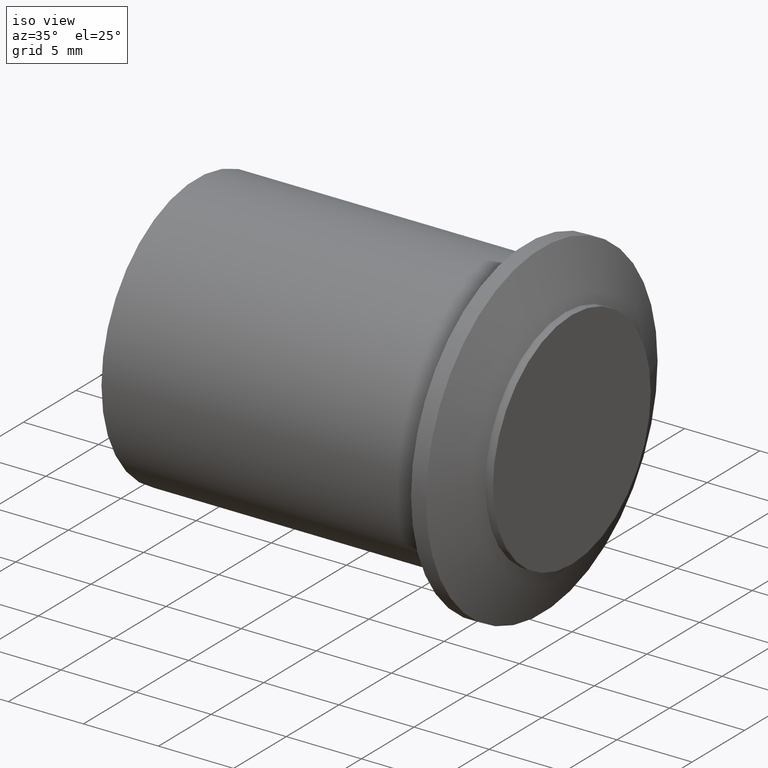
[diagram: clean part render]
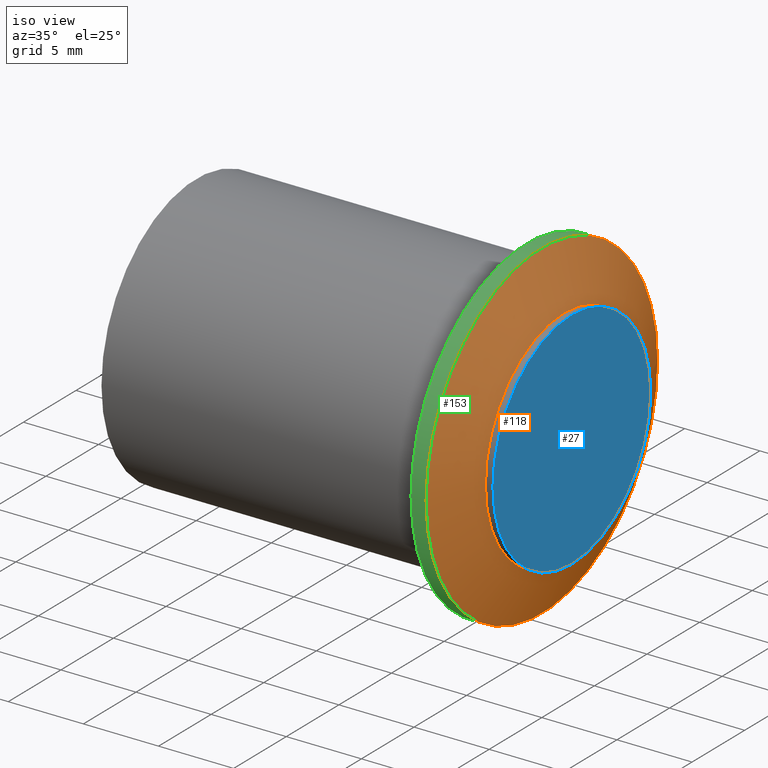
[diagram: same view with three faces highlighted in distinct colors, each labeled with its STEP entity id]
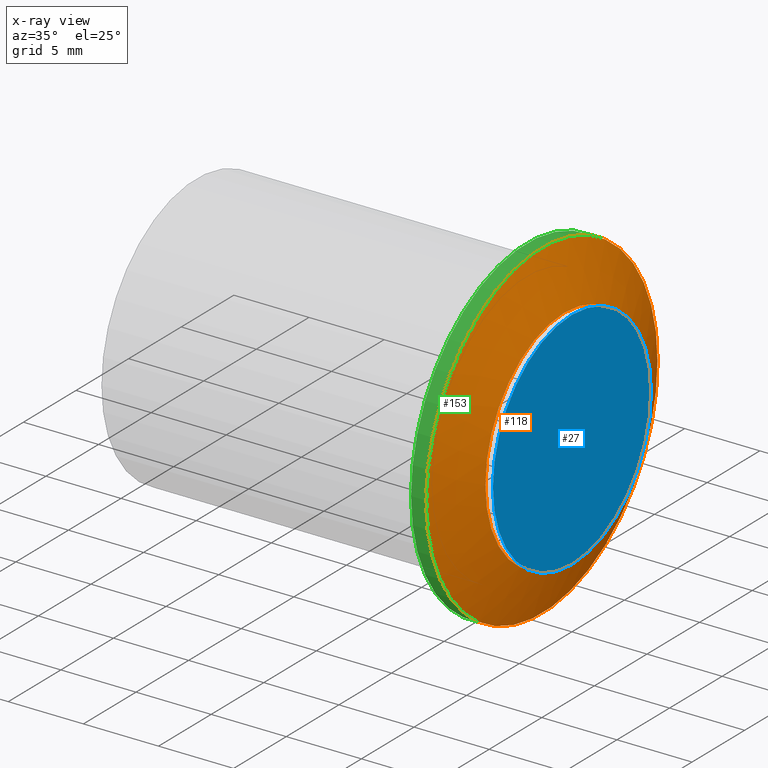
[diagram: x-ray of the same camera — body ghosted, the three highlighted faces saturated]
A machine part, iso view with three faces highlighted in distinct colors.
The next image is the same camera in x-ray (body ghosted, the three faces saturated) — at least one of them is partly hidden behind the body in this view.
Their STEP definitions:

[orange] entity #118 — the highlighted face is a freeform B-spline surface patch.
#33=CARTESIAN_POINT('',(-0.500000000000000,7.499999999999886,0.0));
#34=VERTEX_POINT('',#33);
#41=CARTESIAN_POINT('',(-0.500000000000000,-7.499999999999886,0.0));
#42=VERTEX_POINT('',#41);
#43=CARTESIAN_POINT('',(-0.500000000000000,0.0,0.0));
#44=DIRECTION('',(1.0,0.0,0.0));
#45=DIRECTION('',(0.0,1.0,0.0));
#46=AXIS2_PLACEMENT_3D('',#43,#44,#45);
#47=CIRCLE('',#46,7.499999999999886);
#48=EDGE_CURVE('',#34,#42,#47,.T.);
#50=CARTESIAN_POINT('',(-0.500000000000000,0.0,0.0));
#51=DIRECTION('',(1.0,0.0,0.0));
#52=DIRECTION('',(0.0,1.0,0.0));
#53=AXIS2_PLACEMENT_3D('',#50,#51,#52);
#54=CIRCLE('',#53,7.499999999999886);
#55=EDGE_CURVE('',#42,#34,#54,.T.);
#63=CARTESIAN_POINT('',(-0.500000000000000,7.499999999999886,0.0));
#64=CARTESIAN_POINT('',(-0.500000000000000,7.499999999999886,7.499999999999886));
#65=CARTESIAN_POINT('',(-0.500000000000000,0.0,7.499999999999886));
#66=CARTESIAN_POINT('',(-0.500000000000000,-7.499999999999886,7.499999999999886));
#67=CARTESIAN_POINT('',(-0.500000000000000,-7.499999999999886,0.0));
#68=CARTESIAN_POINT('',(-0.500000000000000,-7.499999999999886,-7.499999999999886));
#69=CARTESIAN_POINT('',(-0.500000000000000,0.0,-7.499999999999886));
#70=CARTESIAN_POINT('',(-0.500000000000000,7.499999999999886,-7.499999999999886));
#71=CARTESIAN_POINT('',(-0.500000000000000,7.499999999999886,0.0));
#72=CARTESIAN_POINT('',(-2.0,10.999999999999886,0.0));
#73=CARTESIAN_POINT('',(-2.0,10.999999999999886,10.999999999999886));
#74=CARTESIAN_POINT('',(-2.0,0.0,10.999999999999886));
#75=CARTESIAN_POINT('',(-2.0,-10.999999999999886,10.999999999999886));
#76=CARTESIAN_POINT('',(-2.0,-10.999999999999886,0.0));
#77=CARTESIAN_POINT('',(-2.0,-10.999999999999886,-10.999999999999886));
#78=CARTESIAN_POINT('',(-2.0,0.0,-10.999999999999886));
#79=CARTESIAN_POINT('',(-2.0,10.999999999999886,-10.999999999999886));
#80=CARTESIAN_POINT('',(-2.0,10.999999999999886,0.0));
#88=(BOUNDED_SURFACE()B_SPLINE_SURFACE(2,1,((#63,#72),(#64,#73),(#65,#74),(#66,#75),(#67,#76),(#68,#77),(#69,#78),(#70,#79),(#71,#80)),.UNSPECIFIED.,.T.,.F.,.U.)B_SPLINE_SURFACE_WITH_KNOTS((3,2,2,2,3),(2,2),(0.0,0.250000000000000,0.500000000000000,0.750000000000000,1.0),(-3.807886552931954,0.0),.UNSPECIFIED.)GEOMETRIC_REPRESENTATION_ITEM()RATIONAL_B_SPLINE_SURFACE(((1.0,1.0),(0.707106781186548,0.707106781186548),(1.0,1.0),(0.707106781186548,0.707106781186548),(1.0,1.0),(0.707106781186548,0.707106781186548),(1.0,1.0),(0.707106781186548,0.707106781186548),(1.0,1.0)))REPRESENTATION_ITEM('')SURFACE());
#89=CARTESIAN_POINT('',(-2.0,10.999999999999886,0.0));
#90=VERTEX_POINT('',#89);
#91=CARTESIAN_POINT('',(-0.500000000000000,7.499999999999886,0.0));
#92=DIRECTION('',(-0.393919298579168,0.919145030018058,0.0));
#93=VECTOR('',#92,3.807886552931954);
#94=LINE('',#91,#93);
#95=EDGE_CURVE('',#34,#90,#94,.T.);
#96=ORIENTED_EDGE('',*,*,#95,.T.);
#97=CARTESIAN_POINT('',(-2.0,-10.999999999999886,0.0));
#98=VERTEX_POINT('',#97);
#99=CARTESIAN_POINT('',(-2.0,0.0,0.0));
#100=DIRECTION('',(1.0,0.0,0.0));
#101=DIRECTION('',(0.0,1.0,0.0));
#102=AXIS2_PLACEMENT_3D('',#99,#100,#101);
#103=CIRCLE('',#102,10.999999999999886);
#104=EDGE_CURVE('',#90,#98,#103,.T.);
#105=ORIENTED_EDGE('',*,*,#104,.T.);
#106=CARTESIAN_POINT('',(-2.0,0.0,0.0));
#107=DIRECTION('',(1.0,0.0,0.0));
#108=DIRECTION('',(0.0,1.0,0.0));
#109=AXIS2_PLACEMENT_3D('',#106,#107,#108);
#110=CIRCLE('',#109,10.999999999999886);
#111=EDGE_CURVE('',#98,#90,#110,.T.);
#112=ORIENTED_EDGE('',*,*,#111,.T.);
#113=ORIENTED_EDGE('',*,*,#95,.F.);
#114=ORIENTED_EDGE('',*,*,#55,.F.);
#115=ORIENTED_EDGE('',*,*,#48,.F.);
#116=EDGE_LOOP('',(#96,#105,#112,#113,#114,#115));
#117=FACE_OUTER_BOUND('',#116,.T.);
#118=ADVANCED_FACE('',(#117),#88,.F.);

[blue] entity #27 — the highlighted planar face has unit normal (-1, 0, 0).
#2=CARTESIAN_POINT('',(0.0,-14.999999999999773,-14.999999999999773));
#3=DIRECTION('',(-1.0,0.0,0.0));
#4=DIRECTION('',(0.0,0.0,1.0));
#5=AXIS2_PLACEMENT_3D('',#2,#3,#4);
#6=PLANE('',#5);
#7=CARTESIAN_POINT('',(0.0,7.499999999999886,0.0));
#8=VERTEX_POINT('',#7);
#9=CARTESIAN_POINT('',(0.0,-7.499999999999886,0.0));
#10=VERTEX_POINT('',#9);
#11=CARTESIAN_POINT('',(0.0,0.0,0.0));
#12=DIRECTION('',(1.0,0.0,0.0));
#13=DIRECTION('',(0.0,1.0,0.0));
#14=AXIS2_PLACEMENT_3D('',#11,#12,#13);
#15=CIRCLE('',#14,7.499999999999886);
#16=EDGE_CURVE('',#8,#10,#15,.T.);
#17=ORIENTED_EDGE('',*,*,#16,.T.);
#18=CARTESIAN_POINT('',(0.0,0.0,0.0));
#19=DIRECTION('',(1.0,0.0,0.0));
#20=DIRECTION('',(0.0,1.0,0.0));
#21=AXIS2_PLACEMENT_3D('',#18,#19,#20);
#22=CIRCLE('',#21,7.499999999999886);
#23=EDGE_CURVE('',#10,#8,#22,.T.);
#24=ORIENTED_EDGE('',*,*,#23,.T.);
#25=EDGE_LOOP('',(#17,#24));
#26=FACE_OUTER_BOUND('',#25,.T.);
#27=ADVANCED_FACE('',(#26),#6,.F.);

[green] entity #153 — the highlighted cylindrical surface (bore or boss wall) has radius 11 mm, axis along (1, 0, 0).
#89=CARTESIAN_POINT('',(-2.0,10.999999999999886,0.0));
#90=VERTEX_POINT('',#89);
#97=CARTESIAN_POINT('',(-2.0,-10.999999999999886,0.0));
#98=VERTEX_POINT('',#97);
#99=CARTESIAN_POINT('',(-2.0,0.0,0.0));
#100=DIRECTION('',(1.0,0.0,0.0));
#101=DIRECTION('',(0.0,1.0,0.0));
#102=AXIS2_PLACEMENT_3D('',#99,#100,#101);
#103=CIRCLE('',#102,10.999999999999886);
#104=EDGE_CURVE('',#90,#98,#103,.T.);
#106=CARTESIAN_POINT('',(-2.0,0.0,0.0));
#107=DIRECTION('',(1.0,0.0,0.0));
#108=DIRECTION('',(0.0,1.0,0.0));
#109=AXIS2_PLACEMENT_3D('',#106,#107,#108);
#110=CIRCLE('',#109,10.999999999999886);
#111=EDGE_CURVE('',#98,#90,#110,.T.);
#119=CARTESIAN_POINT('',(-2.0,0.0,0.0));
#120=DIRECTION('',(1.0,0.0,0.0));
#121=DIRECTION('',(0.0,1.0,0.0));
#122=AXIS2_PLACEMENT_3D('',#119,#120,#121);
#123=CYLINDRICAL_SURFACE('',#122,10.999999999999886);
#124=CARTESIAN_POINT('',(-3.0,10.999999999999886,0.0));
#125=VERTEX_POINT('',#124);
#126=CARTESIAN_POINT('',(-2.0,10.999999999999886,0.0));
#127=DIRECTION('',(-1.0,0.0,0.0));
#128=VECTOR('',#127,1.0);
#129=LINE('',#126,#128);
#130=EDGE_CURVE('',#90,#125,#129,.T.);
#131=ORIENTED_EDGE('',*,*,#130,.T.);
#132=CARTESIAN_POINT('',(-3.0,-10.999999999999886,0.0));
#133=VERTEX_POINT('',#132);
#134=CARTESIAN_POINT('',(-3.0,0.0,0.0));
#135=DIRECTION('',(1.0,0.0,0.0));
#136=DIRECTION('',(0.0,1.0,0.0));
#137=AXIS2_PLACEMENT_3D('',#134,#135,#136);
#138=CIRCLE('',#137,10.999999999999886);
#139=EDGE_CURVE('',#125,#133,#138,.T.);
#140=ORIENTED_EDGE('',*,*,#139,.T.);
#141=CARTESIAN_POINT('',(-3.0,0.0,0.0));
#142=DIRECTION('',(1.0,0.0,0.0));
#143=DIRECTION('',(0.0,1.0,0.0));
#144=AXIS2_PLACEMENT_3D('',#141,#142,#143);
#145=CIRCLE('',#144,10.999999999999886);
#146=EDGE_CURVE('',#133,#125,#145,.T.);
#147=ORIENTED_EDGE('',*,*,#146,.T.);
#148=ORIENTED_EDGE('',*,*,#130,.F.);
#149=ORIENTED_EDGE('',*,*,#111,.F.);
#150=ORIENTED_EDGE('',*,*,#104,.F.);
#151=EDGE_LOOP('',(#131,#140,#147,#148,#149,#150));
#152=FACE_OUTER_BOUND('',#151,.T.);
#153=ADVANCED_FACE('',(#152),#123,.T.);